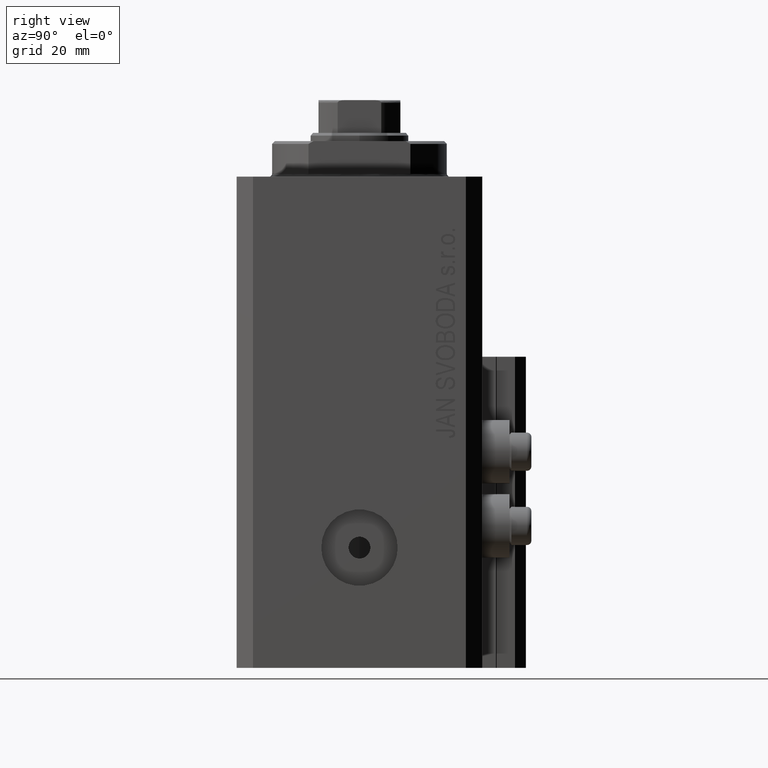
[diagram: clean part render]
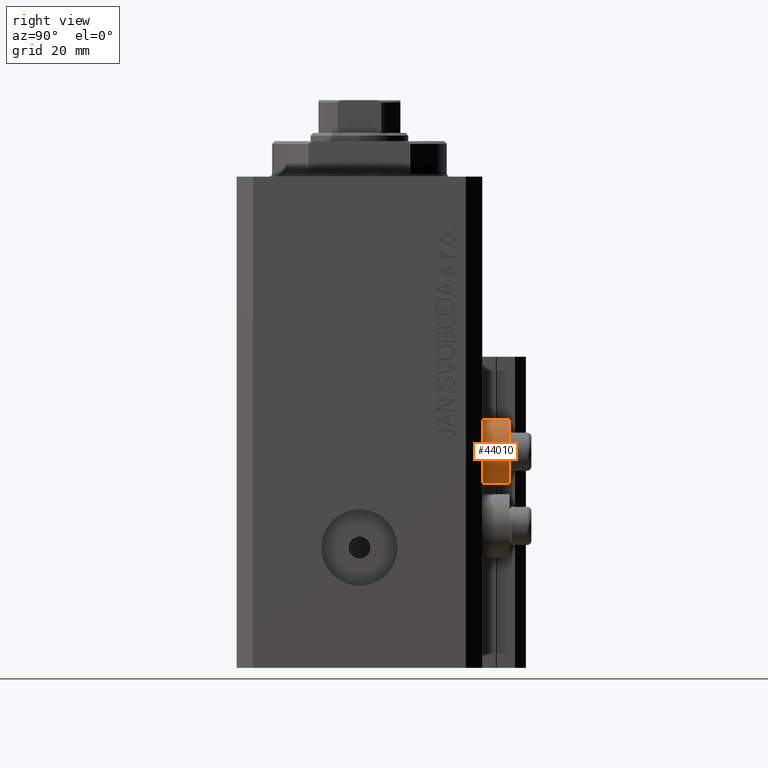
[diagram: same view with one face highlighted and labeled with its STEP entity id]
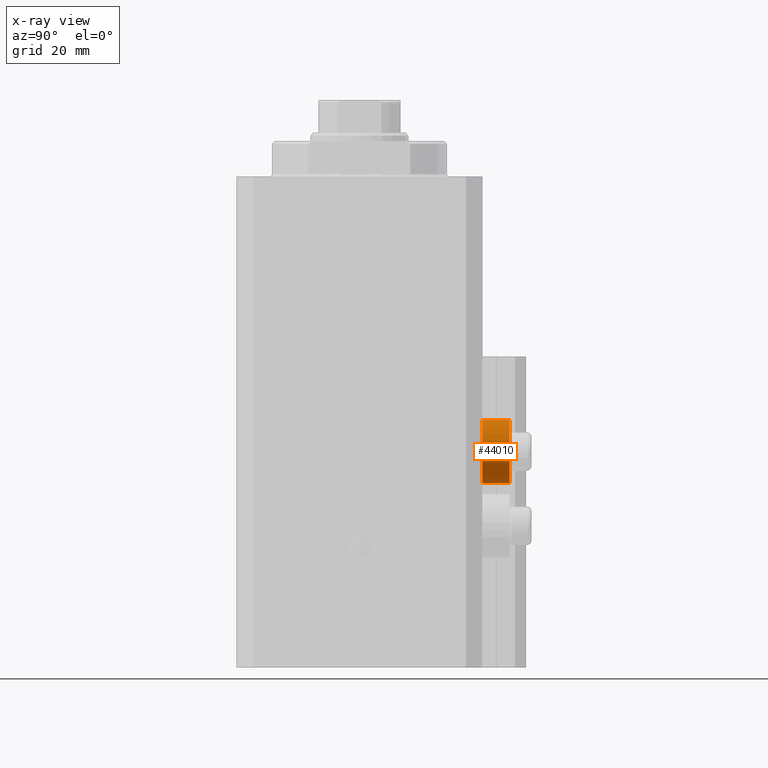
[diagram: x-ray of the same camera — body ghosted, the highlighted face saturated]
A machine part, right view. The second image highlights one B-rep face of the part: STEP entity #44010.
The next image is the same camera in x-ray: the body ghosted, the highlighted face saturated — about 0% of this face is hidden behind the body in this view.
In plain terms, the highlighted cylindrical surface (edge-blend (fillet) strip) has radius 5.8 mm, axis along (0, 1, 0).
Its self-contained STEP definition (entity closure, byte-faithful):
#906 = AXIS2_PLACEMENT_3D ( 'NONE', #23985, #27573, #13169 ) ;
#3006 = DIRECTION ( 'NONE',  ( -0.000000000000000000, -1.000000000000000000, -0.000000000000000000 ) ) ;
#5461 = LINE ( 'NONE', #24157, #45663 ) ;
#5963 = CARTESIAN_POINT ( 'NONE',  ( 18.00000000000000355, 27.49999999996051514, -56.20000000000000284 ) ) ;
#5992 = CYLINDRICAL_SURFACE ( 'NONE', #906, 5.799999999999999822 ) ;
#10072 = VERTEX_POINT ( 'NONE', #5963 ) ;
#10603 = ORIENTED_EDGE ( 'NONE', *, *, #22977, .T. ) ;
#12637 = DIRECTION ( 'NONE',  ( 0.000000000000000000, 1.000000000000000000, 0.000000000000000000 ) ) ;
#13169 = DIRECTION ( 'NONE',  ( 0.000000000000000000, 0.000000000000000000, 1.000000000000000000 ) ) ;
#13312 = CARTESIAN_POINT ( 'NONE',  ( 18.00000000000000355, 22.49999999999951328, -50.39999999999999858 ) ) ;
#14139 = CARTESIAN_POINT ( 'NONE',  ( 18.00000000000000355, 22.49999999999951328, -44.60000000000000142 ) ) ;
#16254 = VERTEX_POINT ( 'NONE', #42960 ) ;
#22238 = DIRECTION ( 'NONE',  ( 0.000000000000000000, 0.000000000000000000, 1.000000000000000000 ) ) ;
#22977 = EDGE_CURVE ( 'NONE', #47067, #10072, #5461, .T. ) ;
#23985 = CARTESIAN_POINT ( 'NONE',  ( 18.00000000000000355, 27.49999999996051514, -50.39999999999999858 ) ) ;
#24157 = CARTESIAN_POINT ( 'NONE',  ( 18.00000000000000355, 27.49999999996051514, -56.20000000000000284 ) ) ;
#25092 = VERTEX_POINT ( 'NONE', #14139 ) ;
#25767 = ORIENTED_EDGE ( 'NONE', *, *, #26106, .T. ) ;
#26106 = EDGE_CURVE ( 'NONE', #10072, #16254, #37213, .T. ) ;
#26861 = LINE ( 'NONE', #46931, #30505 ) ;
#27573 = DIRECTION ( 'NONE',  ( 0.000000000000000000, 1.000000000000000000, 0.000000000000000000 ) ) ;
#27871 = ORIENTED_EDGE ( 'NONE', *, *, #31582, .F. ) ;
#28040 = DIRECTION ( 'NONE',  ( 0.000000000000000000, 1.000000000000000000, 0.000000000000000000 ) ) ;
#28068 = AXIS2_PLACEMENT_3D ( 'NONE', #44275, #37329, #22238 ) ;
#28315 = EDGE_CURVE ( 'NONE', #47067, #25092, #33498, .T. ) ;
#30145 = CARTESIAN_POINT ( 'NONE',  ( 18.00000000000000355, 22.49999999999951328, -56.20000000000000284 ) ) ;
#30505 = VECTOR ( 'NONE', #28040, 1000.000000000000000 ) ;
#31582 = EDGE_CURVE ( 'NONE', #25092, #16254, #26861, .T. ) ;
#33498 = CIRCLE ( 'NONE', #44198, 5.799999999999999822 ) ;
#34830 = ORIENTED_EDGE ( 'NONE', *, *, #28315, .F. ) ;
#37213 = CIRCLE ( 'NONE', #28068, 5.799999999999999822 ) ;
#37329 = DIRECTION ( 'NONE',  ( -0.000000000000000000, -1.000000000000000000, -0.000000000000000000 ) ) ;
#38725 = DIRECTION ( 'NONE',  ( 0.000000000000000000, 0.000000000000000000, 1.000000000000000000 ) ) ;
#39134 = EDGE_LOOP ( 'NONE', ( #34830, #10603, #25767, #27871 ) ) ;
#42960 = CARTESIAN_POINT ( 'NONE',  ( 18.00000000000000355, 27.49999999996051514, -44.60000000000000142 ) ) ;
#44010 = ADVANCED_FACE ( 'NONE', ( #46007 ), #5992, .T. ) ;
#44198 = AXIS2_PLACEMENT_3D ( 'NONE', #13312, #3006, #38725 ) ;
#44275 = CARTESIAN_POINT ( 'NONE',  ( 18.00000000000000355, 27.49999999996051514, -50.39999999999999858 ) ) ;
#45663 = VECTOR ( 'NONE', #12637, 1000.000000000000000 ) ;
#46007 = FACE_OUTER_BOUND ( 'NONE', #39134, .T. ) ;
#46931 = CARTESIAN_POINT ( 'NONE',  ( 18.00000000000000355, 27.49999999996051514, -44.60000000000000142 ) ) ;
#47067 = VERTEX_POINT ( 'NONE', #30145 ) ;